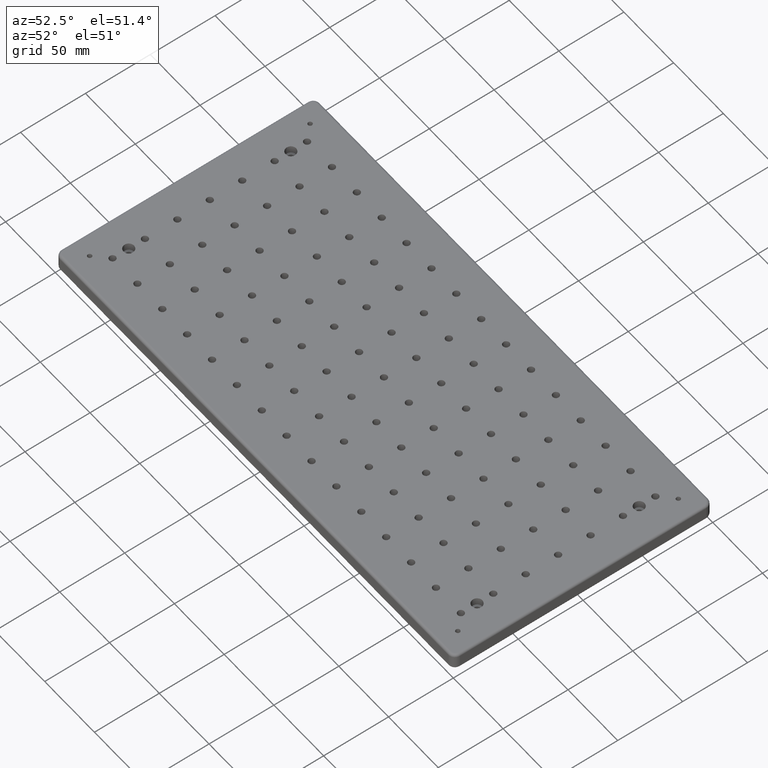
[diagram: clean part render]
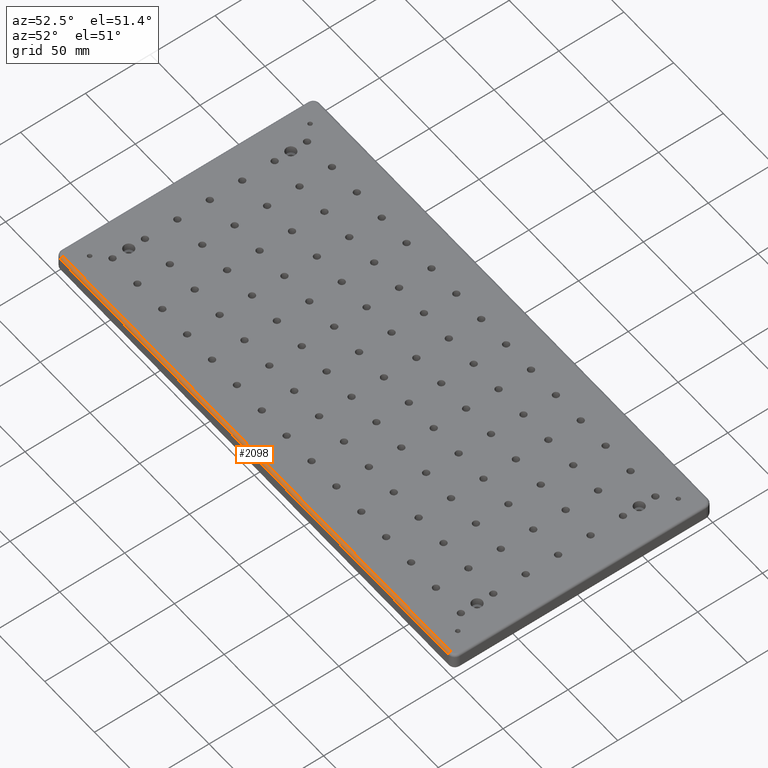
[diagram: same view with one face highlighted and labeled with its STEP entity id]
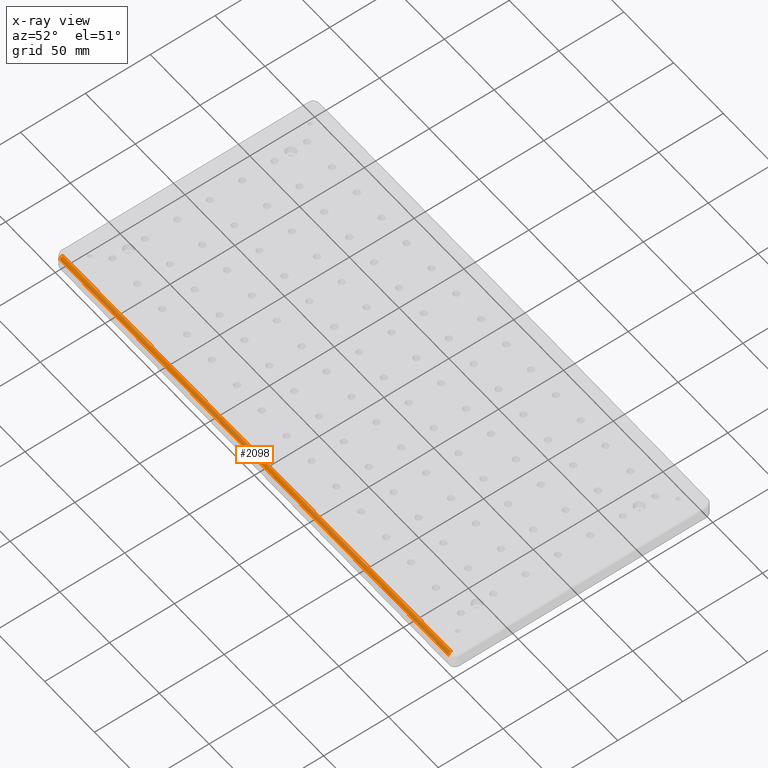
[diagram: x-ray of the same camera — body ghosted, the highlighted face saturated]
A machine part, auxiliary view. The second image highlights one B-rep face of the part: STEP entity #2098.
The next image is the same camera in x-ray: the body ghosted, the highlighted face saturated — about 0% of this face is hidden behind the body in this view.
In plain terms, the highlighted cylindrical surface (edge-blend (fillet) strip) has radius 2 mm, axis along (-1, 0, 0).
Its self-contained STEP definition (entity closure, byte-faithful):
#56 = DIRECTION ( 'NONE',  ( 0.0000000000000000000, 0.0000000000000000000, 1.000000000000000000 ) ) ;
#122 = FACE_OUTER_BOUND ( 'NONE', #5978, .T. ) ;
#154 = DIRECTION ( 'NONE',  ( -1.000000000000000000, 1.387778780781444600E-014, 0.0000000000000000000 ) ) ;
#348 = EDGE_CURVE ( 'NONE', #7175, #5819, #7339, .T. ) ;
#893 = DIRECTION ( 'NONE',  ( -1.387778780781444400E-014, -1.000000000000000000, 0.0000000000000000000 ) ) ;
#951 = CARTESIAN_POINT ( 'NONE',  ( -195.0000000000001400, -98.00000000000000000, -2.000000000000000000 ) ) ;
#971 = LINE ( 'NONE', #3432, #8492 ) ;
#1015 = AXIS2_PLACEMENT_3D ( 'NONE', #1673, #154, #893 ) ;
#1598 = DIRECTION ( 'NONE',  ( -1.000000000000000000, 0.0000000000000000000, 0.0000000000000000000 ) ) ;
#1673 = CARTESIAN_POINT ( 'NONE',  ( 195.0000000000001400, -97.99999999999997200, -1.999999999999999100 ) ) ;
#1763 = ORIENTED_EDGE ( 'NONE', *, *, #348, .T. ) ;
#2098 = ADVANCED_FACE ( 'NONE', ( #122 ), #2736, .T. ) ;
#2525 = CIRCLE ( 'NONE', #6494, 2.000000000000000000 ) ;
#2598 = DIRECTION ( 'NONE',  ( 0.0000000000000000000, -1.000000000000000000, 0.0000000000000000000 ) ) ;
#2736 = CYLINDRICAL_SURFACE ( 'NONE', #6289, 2.000000000000001800 ) ;
#3153 = CARTESIAN_POINT ( 'NONE',  ( -195.0000000000001100, -99.99999999999997200, -2.000000000000003600 ) ) ;
#3432 = CARTESIAN_POINT ( 'NONE',  ( -195.0000000000001100, -100.0000000000000000, -2.000000000000000000 ) ) ;
#3874 = ORIENTED_EDGE ( 'NONE', *, *, #5829, .F. ) ;
#4038 = DIRECTION ( 'NONE',  ( -1.000000000000000000, 1.067522139062650100E-016, 0.0000000000000000000 ) ) ;
#4057 = ORIENTED_EDGE ( 'NONE', *, *, #8371, .F. ) ;
#4401 = LINE ( 'NONE', #7595, #4962 ) ;
#4666 = CARTESIAN_POINT ( 'NONE',  ( 195.0000000000001400, -98.00000000000004300, 0.0000000000000000000 ) ) ;
#4962 = VECTOR ( 'NONE', #8348, 1000.000000000000000 ) ;
#5161 = CARTESIAN_POINT ( 'NONE',  ( -195.0000000000001100, -98.00000000000000000, 0.0000000000000000000 ) ) ;
#5525 = CARTESIAN_POINT ( 'NONE',  ( 195.0000000000001100, -100.0000000000000400, -2.000000000000003600 ) ) ;
#5811 = CARTESIAN_POINT ( 'NONE',  ( -195.0000000000001100, -98.00000000000000000, -2.000000000000000000 ) ) ;
#5819 = VERTEX_POINT ( 'NONE', #4666 ) ;
#5829 = EDGE_CURVE ( 'NONE', #6287, #5819, #4401, .T. ) ;
#5978 = EDGE_LOOP ( 'NONE', ( #1763, #3874, #4057, #6279 ) ) ;
#6279 = ORIENTED_EDGE ( 'NONE', *, *, #6776, .F. ) ;
#6287 = VERTEX_POINT ( 'NONE', #5161 ) ;
#6289 = AXIS2_PLACEMENT_3D ( 'NONE', #951, #4038, #2598 ) ;
#6494 = AXIS2_PLACEMENT_3D ( 'NONE', #5811, #1598, #56 ) ;
#6776 = EDGE_CURVE ( 'NONE', #7175, #8973, #971, .T. ) ;
#7175 = VERTEX_POINT ( 'NONE', #5525 ) ;
#7339 = CIRCLE ( 'NONE', #1015, 2.000000000000001800 ) ;
#7595 = CARTESIAN_POINT ( 'NONE',  ( 195.0000000000000900, -98.00000000000004300, 0.0000000000000000000 ) ) ;
#8348 = DIRECTION ( 'NONE',  ( 1.000000000000000000, -1.067522139062650100E-016, 0.0000000000000000000 ) ) ;
#8371 = EDGE_CURVE ( 'NONE', #8973, #6287, #2525, .T. ) ;
#8492 = VECTOR ( 'NONE', #9305, 1000.000000000000000 ) ;
#8973 = VERTEX_POINT ( 'NONE', #3153 ) ;
#9305 = DIRECTION ( 'NONE',  ( -1.000000000000000000, 1.067522139062650100E-016, -0.0000000000000000000 ) ) ;